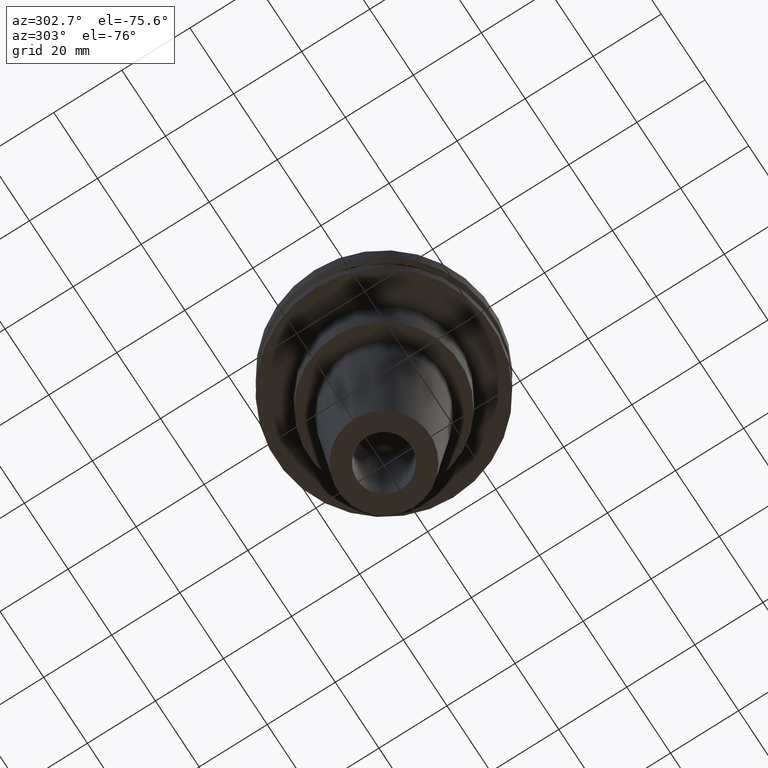
[diagram: clean part render]
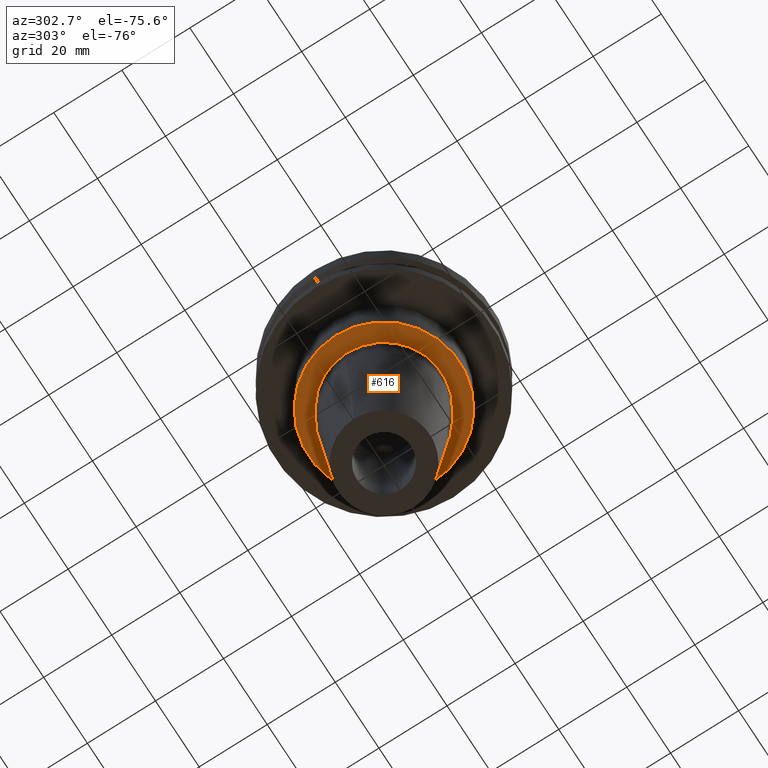
[diagram: same view with one face highlighted and labeled with its STEP entity id]
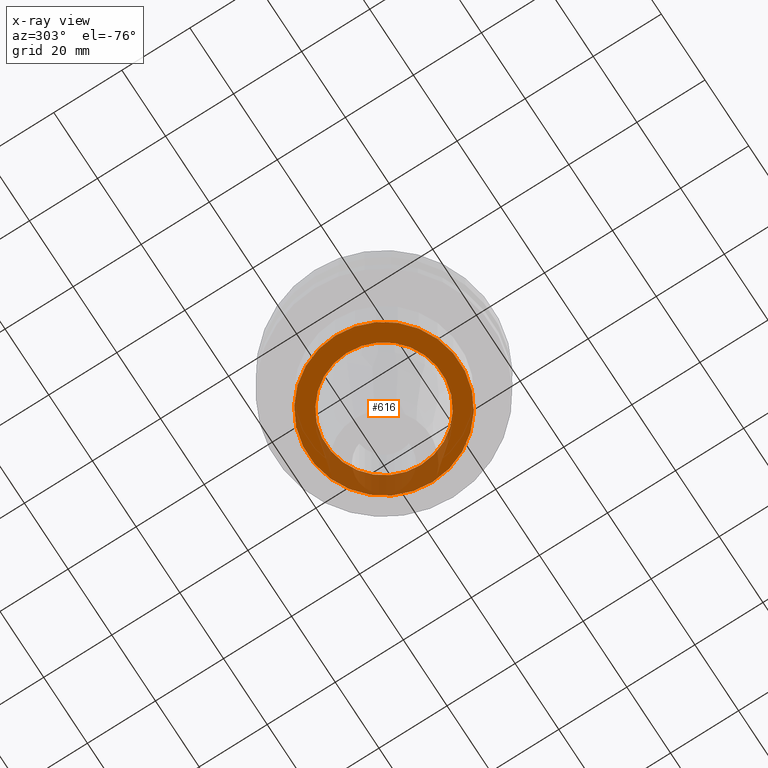
[diagram: x-ray of the same camera — body ghosted, the highlighted face saturated]
A machine part, auxiliary view. The second image highlights one B-rep face of the part: STEP entity #616.
The next image is the same camera in x-ray: the body ghosted, the highlighted face saturated — about 27% of this face is hidden behind the body in this view.
In plain terms, the highlighted planar face has unit normal (0, -0, 1).
Its self-contained STEP definition (entity closure, byte-faithful):
#36 = CARTESIAN_POINT ( 'NONE',  ( -17.00000000000000000, 2.081899558550500280E-15, -35.04999999999999716 ) ) ;
#51 = EDGE_CURVE ( 'NONE', #632, #545, #643, .T. ) ;
#59 = ORIENTED_EDGE ( 'NONE', *, *, #531, .F. ) ;
#96 = CARTESIAN_POINT ( 'NONE',  ( 22.22499999999999787, 0.000000000000000000, -35.04999999999999716 ) ) ;
#121 = CARTESIAN_POINT ( 'NONE',  ( -22.22499999999999787, 2.721777511104992454E-15, -35.04999999999999716 ) ) ;
#122 = VERTEX_POINT ( 'NONE', #121 ) ;
#124 = DIRECTION ( 'NONE',  ( 1.000000000000000000, 0.000000000000000000, 0.000000000000000000 ) ) ;
#133 = EDGE_CURVE ( 'NONE', #122, #532, #824, .T. ) ;
#179 = DIRECTION ( 'NONE',  ( 1.000000000000000000, 0.000000000000000000, 0.000000000000000000 ) ) ;
#182 = FACE_BOUND ( 'NONE', #781, .T. ) ;
#197 = CARTESIAN_POINT ( 'NONE',  ( 0.000000000000000000, 0.000000000000000000, -35.04999999999999716 ) ) ;
#227 = DIRECTION ( 'NONE',  ( 1.000000000000000000, 0.000000000000000000, 0.000000000000000000 ) ) ;
#255 = PLANE ( 'NONE',  #407 ) ;
#275 = ORIENTED_EDGE ( 'NONE', *, *, #847, .T. ) ;
#278 = EDGE_LOOP ( 'NONE', ( #59, #845 ) ) ;
#306 = DIRECTION ( 'NONE',  ( 0.000000000000000000, -0.000000000000000000, 1.000000000000000000 ) ) ;
#316 = DIRECTION ( 'NONE',  ( -0.000000000000000000, -0.000000000000000000, 1.000000000000000000 ) ) ;
#363 = DIRECTION ( 'NONE',  ( -0.000000000000000000, -0.000000000000000000, 1.000000000000000000 ) ) ;
#370 = CIRCLE ( 'NONE', #809, 17.00000000000000000 ) ;
#385 = AXIS2_PLACEMENT_3D ( 'NONE', #197, #316, #124 ) ;
#398 = CARTESIAN_POINT ( 'NONE',  ( 0.000000000000000000, 0.000000000000000000, -35.04999999999999716 ) ) ;
#407 = AXIS2_PLACEMENT_3D ( 'NONE', #784, #306, #179 ) ;
#418 = CARTESIAN_POINT ( 'NONE',  ( 0.000000000000000000, 0.000000000000000000, -35.04999999999999716 ) ) ;
#421 = CARTESIAN_POINT ( 'NONE',  ( 0.000000000000000000, 0.000000000000000000, -35.04999999999999716 ) ) ;
#531 = EDGE_CURVE ( 'NONE', #532, #122, #569, .T. ) ;
#532 = VERTEX_POINT ( 'NONE', #96 ) ;
#537 = AXIS2_PLACEMENT_3D ( 'NONE', #421, #363, #619 ) ;
#545 = VERTEX_POINT ( 'NONE', #36 ) ;
#569 = CIRCLE ( 'NONE', #537, 22.22499999999999787 ) ;
#588 = DIRECTION ( 'NONE',  ( 1.000000000000000000, 0.000000000000000000, 0.000000000000000000 ) ) ;
#616 = ADVANCED_FACE ( 'NONE', ( #182, #706 ), #255, .F. ) ;
#619 = DIRECTION ( 'NONE',  ( 1.000000000000000000, 0.000000000000000000, 0.000000000000000000 ) ) ;
#632 = VERTEX_POINT ( 'NONE', #771 ) ;
#643 = CIRCLE ( 'NONE', #661, 17.00000000000000000 ) ;
#661 = AXIS2_PLACEMENT_3D ( 'NONE', #418, #682, #227 ) ;
#682 = DIRECTION ( 'NONE',  ( -0.000000000000000000, -0.000000000000000000, 1.000000000000000000 ) ) ;
#706 = FACE_OUTER_BOUND ( 'NONE', #278, .T. ) ;
#718 = ORIENTED_EDGE ( 'NONE', *, *, #51, .T. ) ;
#771 = CARTESIAN_POINT ( 'NONE',  ( 17.00000000000000000, 0.000000000000000000, -35.04999999999999716 ) ) ;
#781 = EDGE_LOOP ( 'NONE', ( #718, #275 ) ) ;
#784 = CARTESIAN_POINT ( 'NONE',  ( 0.000000000000000000, 22.22499999999999787, -35.04999999999999716 ) ) ;
#803 = DIRECTION ( 'NONE',  ( -0.000000000000000000, -0.000000000000000000, 1.000000000000000000 ) ) ;
#809 = AXIS2_PLACEMENT_3D ( 'NONE', #398, #803, #588 ) ;
#824 = CIRCLE ( 'NONE', #385, 22.22499999999999787 ) ;
#845 = ORIENTED_EDGE ( 'NONE', *, *, #133, .F. ) ;
#847 = EDGE_CURVE ( 'NONE', #545, #632, #370, .T. ) ;